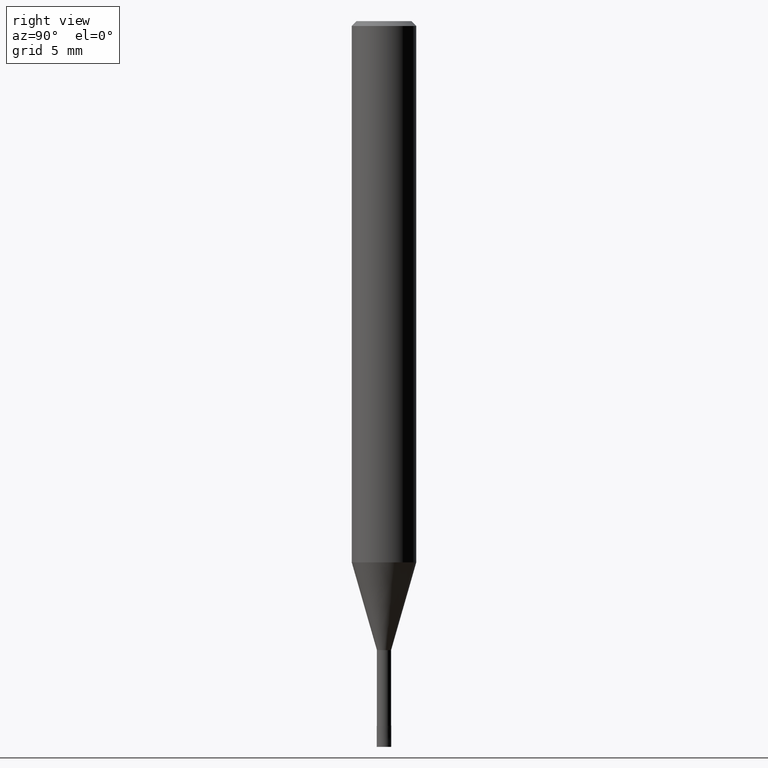
[diagram: clean part render]
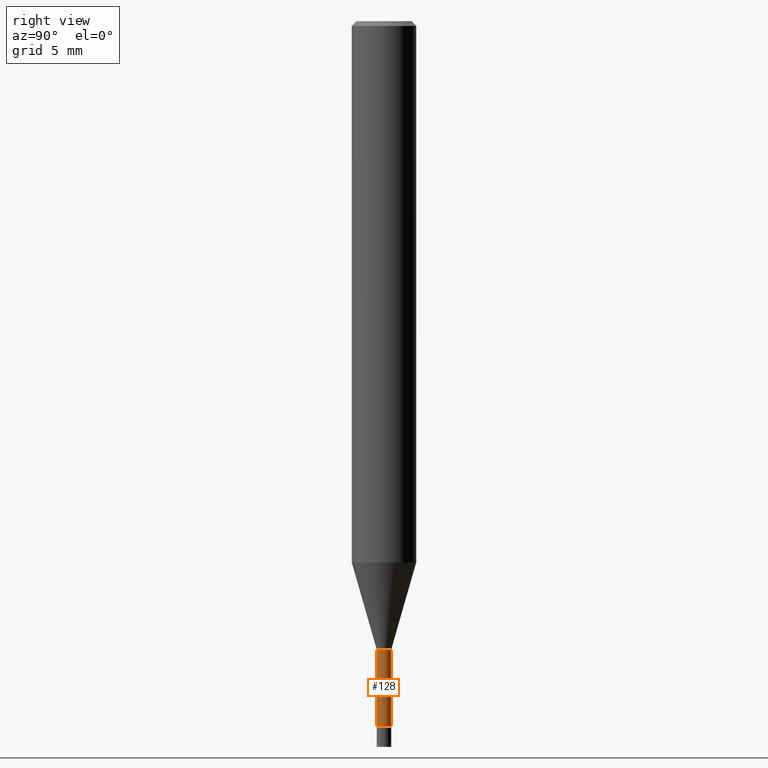
[diagram: same view with one face highlighted and labeled with its STEP entity id]
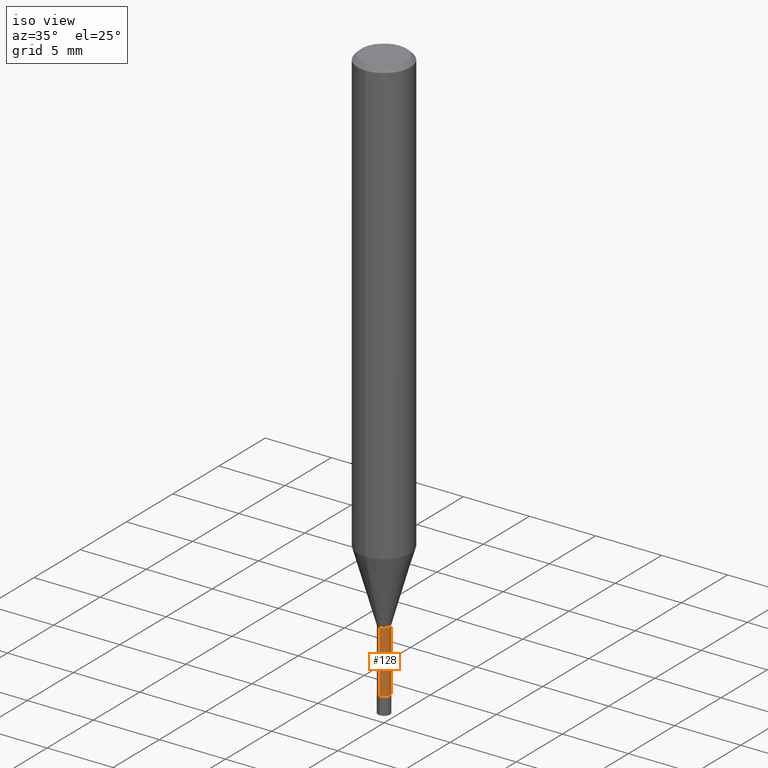
[diagram: same view with one face highlighted and labeled with its STEP entity id]
A machine part, right view. The second image highlights one B-rep face of the part: STEP entity #128.
A second angle (iso view) of the same face is appended — the face is thin or edge-on in the first view.
In plain terms, the highlighted cylindrical surface (edge-blend (fillet) strip) has radius 0.44 mm, axis along (-0, -0, 1).
Its self-contained STEP definition (entity closure, byte-faithful):
#122=EDGE_CURVE('',#126,#154,#267,.T.);
#126=VERTEX_POINT('',#271);
#128=ADVANCED_FACE('',(#273),#274,.T.);
#150=VERTEX_POINT('',#297);
#154=VERTEX_POINT('',#301);
#156=EDGE_CURVE('',#126,#150,#303,.T.);
#186=VERTEX_POINT('',#339);
#190=EDGE_CURVE('',#186,#154,#343,.T.);
#196=EDGE_CURVE('',#150,#186,#349,.T.);
#267=CIRCLE('',#421,0.43995);
#271=CARTESIAN_POINT('',(0.0,0.43995,-39.0));
#273=FACE_OUTER_BOUND('',#429,.T.);
#274=CYLINDRICAL_SURFACE('',#430,0.43995);
#297=CARTESIAN_POINT('',(0.0,0.43995,-43.7));
#301=CARTESIAN_POINT('',(5.38765565364155E-017,-0.43995,-39.0));
#303=LINE('',#470,#471);
#339=CARTESIAN_POINT('',(5.38765565364155E-017,-0.43995,-43.7));
#343=LINE('',#516,#517);
#349=CIRCLE('',#524,0.43995);
#421=AXIS2_PLACEMENT_3D('',#621,#622,#623);
#429=EDGE_LOOP('',(#626,#627,#628,#629));
#430=AXIS2_PLACEMENT_3D('',#630,#631,#632);
#470=CARTESIAN_POINT('',(-5.38765565364155E-017,0.43995,-41.35));
#471=VECTOR('',#656,1.0);
#516=CARTESIAN_POINT('',(5.38765565364155E-017,-0.43995,-41.35));
#517=VECTOR('',#704,1.0);
#524=AXIS2_PLACEMENT_3D('',#705,#706,#707);
#621=CARTESIAN_POINT('',(0.0,0.0,-39.0));
#622=DIRECTION('',(0.0,0.0,-1.0));
#623=DIRECTION('',(0.0,1.0,0.0));
#626=ORIENTED_EDGE('',*,*,#156,.F.);
#627=ORIENTED_EDGE('',*,*,#122,.T.);
#628=ORIENTED_EDGE('',*,*,#190,.F.);
#629=ORIENTED_EDGE('',*,*,#196,.F.);
#630=CARTESIAN_POINT('',(0.0,0.0,-41.35));
#631=DIRECTION('',(-0.0,-0.0,1.0));
#632=DIRECTION('',(0.0,1.0,0.0));
#656=DIRECTION('',(0.0,0.0,-1.0));
#704=DIRECTION('',(-0.0,-0.0,1.0));
#705=CARTESIAN_POINT('',(0.0,0.0,-43.7));
#706=DIRECTION('',(0.0,0.0,-1.0));
#707=DIRECTION('',(0.0,1.0,0.0));